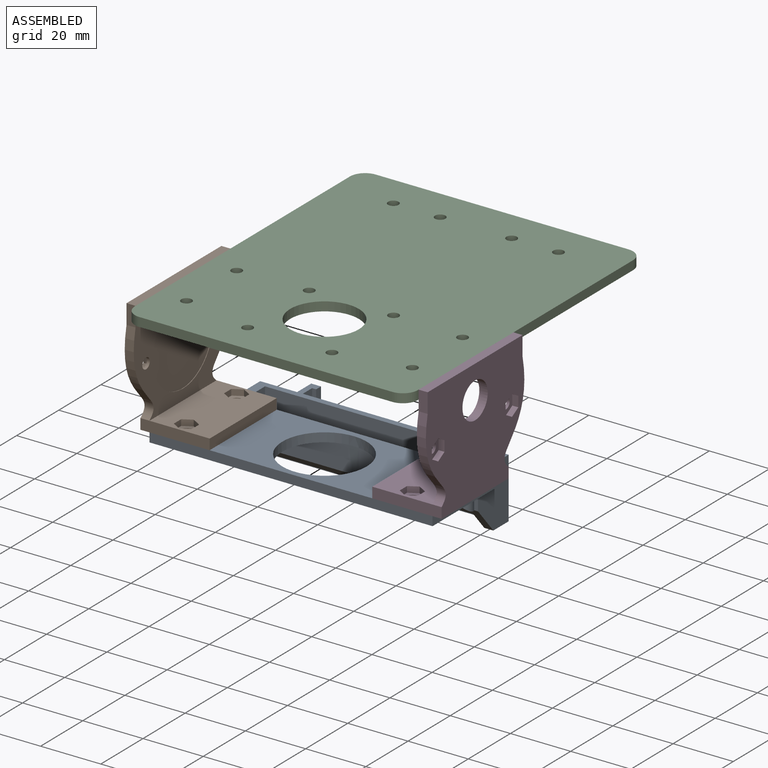
[diagram: assembled view]
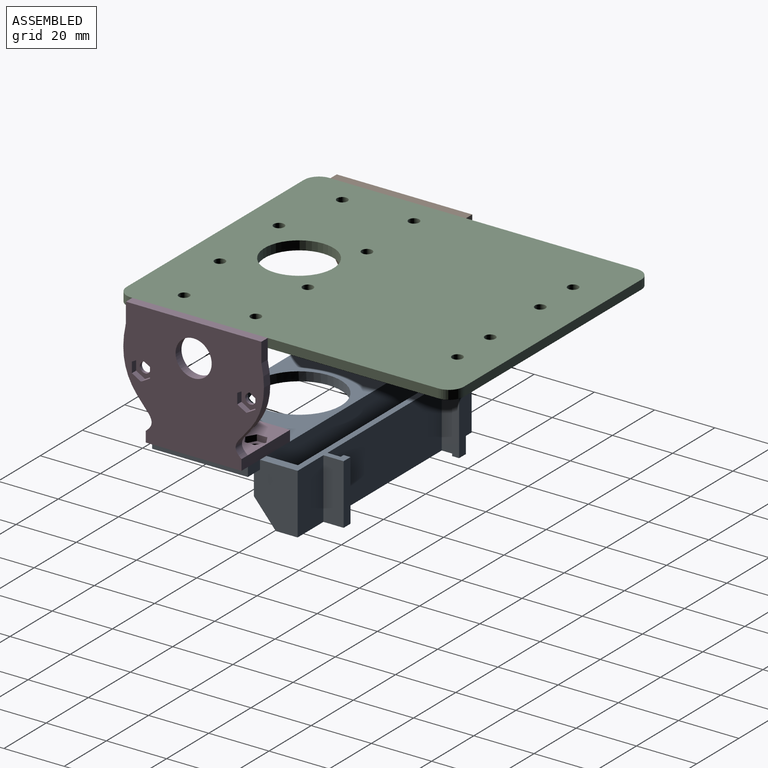
[diagram: assembled view, second angle]
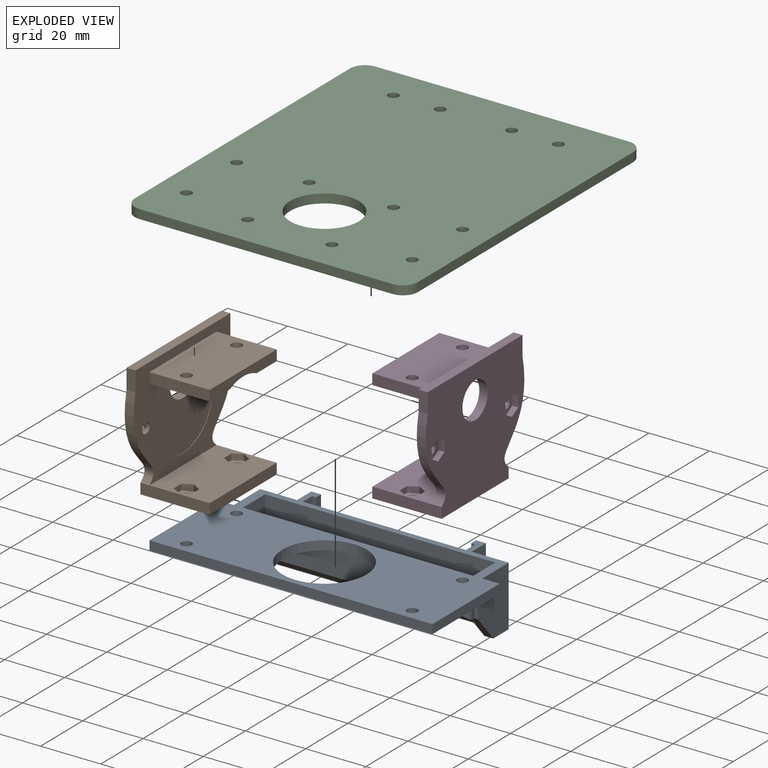
[diagram: exploded view]
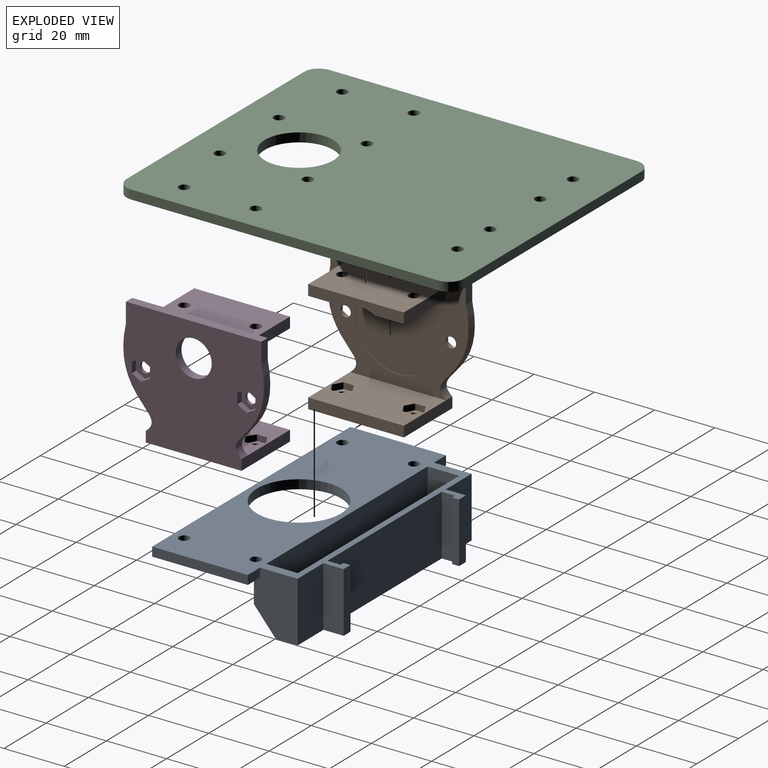
[diagram: exploded view, second angle]
ASSEMBLY  parts=4 mates=3
PART A: 39 faces, bbox 94x51x20 mm
  f0: plane 8.5x1.32mm, normal (0,1,0), area 11.2mm2, adj f4,f15,f35,f38
  f1: plane 33.4x8.5mm, normal (0,1,0), area 283.9mm2, adj f15,f35,f36,f38
  f2: plane 33.4x8.5mm, normal (0,1,0), area 283.9mm2, adj f15,f35,f36,f37
  f3: plane 8.5x1.32mm, normal (0,1,0), area 11.2mm2, adj f15,f21,f35,f37
  f4: plane 20x14.5mm, normal (-1,0,0), area 253.2mm2, adj f0,f6,f15,f16,f22,f34,f35
  f5: plane 76.5x13.85mm, normal (0,-1,0), area 1059.1mm2, adj f16,f17,f19,f35
  f6: plane 5.75x3mm, normal (0,-1,0), area 17.2mm2, adj f4,f14,f15,f16
  f7: plane 5.75x3mm, normal (0,-1,0), area 17.2mm2, adj f8,f15,f16,f21
  f8: plane 31.8x3mm, normal (1,0,0), area 95.4mm2, adj f7,f9,f15,f16
  f9: plane 94x3mm, normal (0,1,0), area 282mm2, adj f8,f14,f15,f16
  f10: cylinder r=1.75mm len=3.5mm, axis (0,0,-1), area 33mm2, adj f15,f16
  f11: cylinder r=1.75mm len=3.5mm, axis (0,0,-1), area 33mm2, adj f15,f16
  f12: cylinder r=1.75mm len=3.5mm, axis (0,0,-1), area 33mm2, adj f15,f16
  f13: cylinder r=1.75mm len=3.5mm, axis (0,0,-1), area 33mm2, adj f15,f16
  f14: plane 31.8x3mm, normal (-1,0,0), area 95.4mm2, adj f6,f9,f15,f16
  f15: plane 94x31.8mm, normal (0,0,1), area 2178mm2, adj f0,f1,f2,f3,f4,f6,f7,f8
  f16: plane 94x51mm, normal (0,0,-1), area 2594.6mm2, adj f4,f5,f6,f7,f8,f9,f10,f11
  f17: plane 20x10.5mm, normal (-1,0,0), area 193.8mm2, adj f5,f16,f18,f34,f35
  f18: plane 76.5x20mm, normal (0,1,0), area 1530mm2, adj f16,f17,f19,f34
  f19: plane 20x10.5mm, normal (1,0,0), area 193.8mm2, adj f5,f16,f18,f34,f35
  f20: plane 20x12.25mm, normal (0,-1,0), area 245mm2, adj f16,f21,f33,f34
  f21: plane 20x14.5mm, normal (1,0,0), area 253.2mm2, adj f3,f7,f15,f16,f20,f34,f35
  f22: plane 20x12.25mm, normal (0,-1,0), area 245mm2, adj f4,f16,f23,f34
  f23: plane 20x6.7mm, normal (-1,0,0), area 134mm2, adj f16,f22,f24,f34
  f24: plane 20x3.25mm, normal (0,-1,0), area 65mm2, adj f16,f23,f25,f34
  f25: plane 20x2.3mm, normal (1,0,0), area 46mm2, adj f16,f24,f26,f34
  f26: plane 20x1.35mm, normal (0,1,0), area 27mm2, adj f16,f25,f27,f34
  f27: plane 20x4.4mm, normal (1,0,0), area 88mm2, adj f16,f26,f28,f34
  f28: plane 54.2x20mm, normal (0,-1,0), area 1084mm2, adj f16,f27,f29,f34
  f29: plane 20x4.4mm, normal (-1,0,0), area 88mm2, adj f16,f28,f30,f34
  f30: plane 20x1.35mm, normal (0,1,0), area 27mm2, adj f16,f29,f31,f34
  f31: plane 20x2.3mm, normal (-1,0,0), area 46mm2, adj f16,f30,f32,f34
  f32: plane 20x3.25mm, normal (0,-1,0), area 65mm2, adj f16,f31,f33,f34
  f33: plane 20x6.7mm, normal (1,0,0), area 134mm2, adj f16,f20,f32,f34
  f34: plane 82.5x13.95mm, normal (0,0,1), area 228.2mm2, adj f4,f17,f18,f19,f20,f21,f22,f23
  f35: plane 82.5x8.5mm, normal (0,0.76,0.65), area 290.5mm2, adj f0,f1,f2,f3,f4,f5,f17,f19
  f36: cylinder r=14mm len=28mm, axis (0,0,-1), area 292.6mm2, adj f1,f2,f15,f16,f35
  f37: cylinder r=3.15mm len=9.85mm, axis (0,0,-1), area 52.2mm2, adj f2,f3,f15,f35
  f38: cylinder r=3.15mm len=9.85mm, axis (0,0,-1), area 52.2mm2, adj f0,f1,f15,f35
PART B: 69 faces, bbox 52.3x40.5x23 mm
  f0: cylinder r=6mm len=12mm, axis (0,0,-1), area 105.6mm2, adj f5,f68
  f1: plane 20x9.55mm, normal (0,1,0), area 162.7mm2, adj f6,f14,f15,f60,f61,f62,f63,f64
  f2: plane 31.8x20mm, normal (0,-1,0), area 616.8mm2, adj f6,f14,f15,f16,f51,f52
  f3: plane 31.8x20mm, normal (0,-1,0), area 573.6mm2, adj f6,f9,f10,f18,f37,f38,f39,f40
  f4: plane 31.8x23mm, normal (0,1,0), area 712.2mm2, adj f5,f9,f10,f18,f35,f36
  f5: plane 52.29x40.5mm, normal (0,0,-1), area 1455mm2, adj f0,f4,f7,f8,f9,f10,f11,f12
  f6: plane 52.29x37mm, normal (0,0,1), area 768mm2, adj f1,f2,f3,f7,f8,f11,f12,f13
  f7: plane 6.5x3mm, normal (1,0,0), area 19.5mm2, adj f5,f6,f8,f13
  f8: extruded ~30.5x9.38mm, area 101.8mm2, adj f5,f6,f7,f9
  f9: plane 23x3.5mm, normal (1,0,0), area 80.5mm2, adj f3,f4,f5,f8,f18
  f10: plane 23x3.5mm, normal (-1,0,0), area 80.5mm2, adj f3,f4,f5,f11,f18
  f11: extruded ~30.5x9.38mm, area 101.8mm2, adj f5,f6,f10,f12
  f12: plane 6.5x3mm, normal (-1,0,0), area 19.5mm2, adj f5,f6,f11,f13
  f13: plane 45x3mm, normal (0,-1,0), area 135mm2, adj f5,f6,f7,f12
  f14: plane 31.8x3.5mm, normal (0,0,1), area 98.5mm2, adj f1,f2,f15,f16,f17,f67
  f15: plane 20x3.5mm, normal (-1,0,0), area 70mm2, adj f1,f2,f6,f14
  f16: plane 20x3.5mm, normal (1,0,0), area 70mm2, adj f2,f6,f14,f17
  f17: plane 20x9.55mm, normal (0,1,0), area 162.7mm2, adj f6,f14,f16,f53,f54,f55,f56,f57
  f18: plane 31.8x3.5mm, normal (0,0,1), area 111.3mm2, adj f3,f4,f9,f10
  f19: cylinder r=1.75mm len=3.5mm, axis (0,0,-1), area 11mm2, adj f6,f27
  f20: cylinder r=1.75mm len=3.5mm, axis (0,0,-1), area 11mm2, adj f6,f34
  f21: plane 3x2mm, normal (-0.5,0.87,0), area 6.9mm2, adj f5,f22,f26,f27
  f22: plane 3x2mm, normal (0.5,0.87,0), area 6.9mm2, adj f5,f21,f23,f27
  f23: plane 3.46x2mm, normal (1,0,0), area 6.9mm2, adj f5,f22,f24,f27
  f24: plane 3x2mm, normal (0.5,-0.87,0), area 6.9mm2, adj f5,f23,f25,f27
  f25: plane 3x2mm, normal (-0.5,-0.87,0), area 6.9mm2, adj f5,f24,f26,f27
  f26: plane 3.46x2mm, normal (-1,0,0), area 6.9mm2, adj f5,f21,f25,f27
  f27: plane 6.93x6mm, normal (0,0,-1), area 21.6mm2, adj f19,f21,f22,f23,f24,f25,f26
  f28: plane 3x2mm, normal (0.5,-0.87,0), area 6.9mm2, adj f5,f29,f33,f34
  f29: plane 3x2mm, normal (-0.5,-0.87,0), area 6.9mm2, adj f5,f28,f30,f34
  f30: plane 3.46x2mm, normal (-1,0,0), area 6.9mm2, adj f5,f29,f31,f34
  f31: plane 3x2mm, normal (-0.5,0.87,0), area 6.9mm2, adj f5,f30,f32,f34
  f32: plane 3x2mm, normal (0.5,0.87,0), area 6.9mm2, adj f5,f31,f33,f34
  f33: plane 3.46x2mm, normal (1,0,0), area 6.9mm2, adj f5,f28,f32,f34
  f34: plane 6.93x6mm, normal (0,0,-1), area 21.6mm2, adj f20,f28,f29,f30,f31,f32,f33
  f35: cylinder r=1.75mm len=3.5mm, axis (0,-1,0), area 16.5mm2, adj f4,f43
  f36: cylinder r=1.75mm len=3.5mm, axis (0,-1,0), area 16.5mm2, adj f4,f50
  f37: plane 3x2mm, normal (0.87,0,-0.5), area 6.9mm2, adj f3,f38,f42,f43
  f38: plane 3x2mm, normal (0.87,0,0.5), area 6.9mm2, adj f3,f37,f39,f43
  f39: plane 3.46x2mm, normal (0,0,1), area 6.9mm2, adj f3,f38,f40,f43
  f40: plane 3x2mm, normal (-0.87,0,0.5), area 6.9mm2, adj f3,f39,f41,f43
  f41: plane 3x2mm, normal (-0.87,0,-0.5), area 6.9mm2, adj f3,f40,f42,f43
  f42: plane 3.46x2mm, normal (0,0,-1), area 6.9mm2, adj f3,f37,f41,f43
  f43: plane 6.93x6mm, normal (0,-1,0), area 21.6mm2, adj f35,f37,f38,f39,f40,f41,f42
  f44: plane 3x2mm, normal (-0.87,0,0.5), area 6.9mm2, adj f3,f45,f49,f50
  f45: plane 3x2mm, normal (-0.87,0,-0.5), area 6.9mm2, adj f3,f44,f46,f50
  f46: plane 3.46x2mm, normal (0,0,-1), area 6.9mm2, adj f3,f45,f47,f50
  f47: plane 3x2mm, normal (0.87,0,-0.5), area 6.9mm2, adj f3,f46,f48,f50
  f48: plane 3x2mm, normal (0.87,0,0.5), area 6.9mm2, adj f3,f47,f49,f50
  f49: plane 3.46x2mm, normal (0,0,1), area 6.9mm2, adj f3,f44,f48,f50
  f50: plane 6.93x6mm, normal (0,-1,0), area 21.6mm2, adj f36,f44,f45,f46,f47,f48,f49
  f51: cylinder r=1.75mm len=3.5mm, axis (0,1,0), area 16.5mm2, adj f2,f59
  f52: cylinder r=1.75mm len=3.5mm, axis (0,1,0), area 16.5mm2, adj f2,f66
  f53: plane 3x2mm, normal (0.91,0,-0.42), area 6.6mm2, adj f17,f54,f58,f59
  f54: plane 3.31x2mm, normal (0,0,-1), area 6.6mm2, adj f17,f53,f55,f59
  f55: plane 3x2mm, normal (-0.91,0,-0.42), area 6.6mm2, adj f17,f54,f56,f59
  f56: plane 3x2mm, normal (-0.91,0,0.42), area 6.6mm2, adj f17,f55,f57,f59
  f57: plane 3.31x2mm, normal (0,0,1), area 6.6mm2, adj f17,f56,f58,f59
  f58: plane 3x2mm, normal (0.91,0,0.42), area 6.6mm2, adj f17,f53,f57,f59
  f59: plane 6.12x6mm, normal (0,1,0), area 18.7mm2, adj f51,f53,f54,f55,f56,f57,f58
  f60: plane 3x2mm, normal (0.91,0,0.42), area 6.6mm2, adj f1,f61,f65,f66
  f61: plane 3x2mm, normal (0.91,0,-0.42), area 6.6mm2, adj f1,f60,f62,f66
  f62: plane 3.31x2mm, normal (0,0,-1), area 6.6mm2, adj f1,f61,f63,f66
  f63: plane 3x2mm, normal (-0.91,0,-0.42), area 6.6mm2, adj f1,f62,f64,f66
  f64: plane 3x2mm, normal (-0.91,0,0.42), area 6.6mm2, adj f1,f63,f65,f66
  f65: plane 3.31x2mm, normal (0,0,1), area 6.6mm2, adj f1,f60,f64,f66
  f66: plane 6.12x6mm, normal (0,1,0), area 18.7mm2, adj f52,f60,f61,f62,f63,f64,f65
  f67: cylinder r=14.2mm len=28.4mm, axis (0,0,1), area 281.3mm2, adj f1,f6,f14,f17,f68
  f68: plane 28.4x28.4mm, normal (0,0,1), area 520.4mm2, adj f0,f67
PART C: 23 faces, bbox 94x112x3 mm
  f0: cylinder r=5mm len=5mm, axis (0,0,-1), area 23.6mm2, adj f1,f9,f21,f22
  f1: plane 84x3mm, normal (0,1,0), area 252mm2, adj f0,f2,f21,f22
  f2: cylinder r=5mm len=5mm, axis (0,0,-1), area 23.6mm2, adj f1,f3,f21,f22
  f3: plane 102x3mm, normal (-1,0,0), area 306mm2, adj f2,f4,f21,f22
  f4: cylinder r=5mm len=5mm, axis (0,0,-1), area 23.6mm2, adj f3,f5,f21,f22
  f5: plane 84x3mm, normal (0,-1,0), area 252mm2, adj f4,f6,f21,f22
  f6: cylinder r=5mm len=5mm, axis (0,0,-1), area 23.6mm2, adj f5,f9,f21,f22
  f7: cylinder r=1.75mm len=3.5mm, axis (0,0,-1), area 33mm2, adj f21,f22
  f8: cylinder r=1.75mm len=3.5mm, axis (0,0,-1), area 33mm2, adj f21,f22
  f9: plane 102x3mm, normal (1,0,0), area 306mm2, adj f0,f6,f21,f22
  f10: cylinder r=1.75mm len=3.5mm, axis (0,0,-1), area 33mm2, adj f21,f22
  f11: cylinder r=1.75mm len=3.5mm, axis (0,0,-1), area 33mm2, adj f21,f22
  f12: cylinder r=1.75mm len=3.5mm, axis (0,0,-1), area 33mm2, adj f21,f22
  f13: cylinder r=1.75mm len=3.5mm, axis (0,0,-1), area 33mm2, adj f21,f22
  f14: cylinder r=11.42mm len=22.84mm, axis (0,0,-1), area 215.3mm2, adj f21,f22
  f15: cylinder r=1.75mm len=3.5mm, axis (0,0,-1), area 33mm2, adj f21,f22
  f16: cylinder r=1.75mm len=3.5mm, axis (0,0,-1), area 33mm2, adj f21,f22
  f17: cylinder r=1.75mm len=3.5mm, axis (0,0,-1), area 33mm2, adj f21,f22
  f18: cylinder r=1.75mm len=3.5mm, axis (0,0,-1), area 33mm2, adj f21,f22
  f19: cylinder r=1.75mm len=3.5mm, axis (0,0,-1), area 33mm2, adj f21,f22
  f20: cylinder r=1.75mm len=3.5mm, axis (0,0,-1), area 33mm2, adj f21,f22
  f21: plane 112x94mm, normal (0,0,1), area 9981.3mm2, adj f0,f1,f2,f3,f4,f5,f6,f7
  f22: plane 112x94mm, normal (0,0,-1), area 9981.3mm2, adj f0,f1,f2,f3,f4,f5,f6,f7
PART D: same geometry as B
PLACE A rot(axis=(1,0,0),180deg) t=(2.88,21.99,-9.95)mm
PLACE B rot(axis=(-0.58,0.58,-0.58),120deg) t=(-47.12,21.99,-7.7)mm
PLACE C t=(2.88,50.2,27.55)mm
PLACE D rot(axis=(-0.58,-0.58,0.58),120deg) t=(52.88,21.99,-7.7)mm
MATE fastened C.f12 <-> D.f52  axis (0,0,-1) through (40.38,10.09,27.55)mm
MATE fastened B.f51 <-> C.f19  axis (0,0,1) through (-34.62,10.09,27.55)mm
MATE fastened D.f35 <-> A.f13  axis (0,0,1) through (40.38,10.09,-9.95)mm
